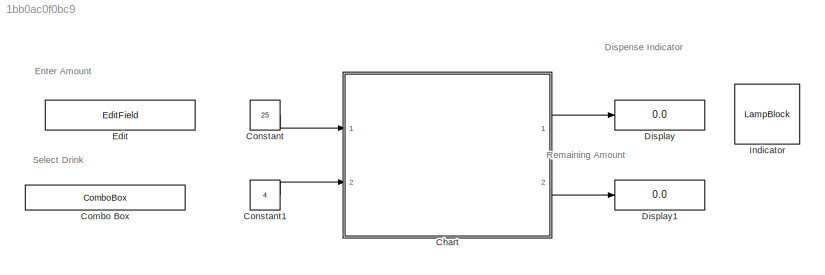
MODEL slx_1bb0ac0f0bc9
KIND model
CONFIG AbsTol = auto
CONFIG EnableMultiTasking = off
CONFIG FixedStep = auto
CONFIG MaxStep = auto
CONFIG MinStep = auto
CONFIG RelTol = 1e-3
CONFIG SampleTimeConstraint = Unconstrained
CONFIG SolverName = VariableStepAuto
CONFIG StartTime = 0.0
CONFIG StopTime = 10.0
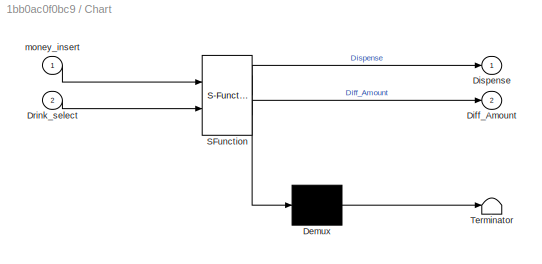
BLOCK [SubSystem] Chart
  ErrorFcn = Stateflow.Translate.translate
  PermitHierarchicalResolution = ExplicitOnly
  Ports = [2, 2]
  RequestExecContextInheritance = off
  SFBlockType = Chart
  TreatAsAtomicUnit = on
BLOCK [Demux] Chart/ Demux 
  Outputs = 1
  Ports = [1, 1]
BLOCK [S-Function] Chart/ SFunction 
  EnableBusSupport = on
  FunctionName = sf_sfun
  PortCounts = [2 3]
  Ports = [2, 3]
  SFcnIsStateOwnerBlock = off
  SFunctionDeploymentMode = off
  Tag = Stateflow S-Function 3
BLOCK [Terminator] Chart/ Terminator 
BLOCK [Outport] Chart/Diff_Amount
  Port = 2
BLOCK [Outport] Chart/Dispense
BLOCK [Inport] Chart/Drink_select
  Port = 2
BLOCK [Inport] Chart/money_insert
BLOCK [ComboBox] Combo Box
  LabelPosition = Hide
  SelectedLabel = Sprite
BLOCK [Constant] Constant
  Value = 25
BLOCK [Constant] Constant1
  Value = 4
BLOCK [Display] Display
  Decimation = 1
  Ports = [1]
BLOCK [Display] Display1
  Decimation = 1
  Ports = [1]
BLOCK [EditField] Edit
  Alignment = Center
  LabelPosition = Hide
  ShowInitialText = on
BLOCK [LampBlock] Indicator
ANNOTATION (root): Enter Amount
ANNOTATION (root): Dispense Indicator
ANNOTATION (root): Remaining Amount
ANNOTATION (root): Select Drink
LINE Chart:1 -> Display:1
LINE Chart:2 -> Display1:1
LINE Constant1:1 -> Chart:2
LINE Constant:1 -> Chart:1
CHART Chart states=6 transitions=14
  STATE_LABEL 'error'
  STATE_LABEL 'Coin_Inserted'
  STATE_LABEL 'Coke'
  STATE_LABEL 'Soda'
  STATE_LABEL 'Sprite\n'
  STATE_LABEL 'Pepsi'
CHART  states=0 transitions=0
